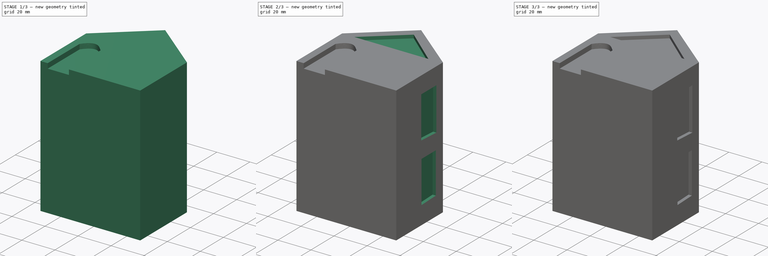
[diagram: build sequence overview — one tinted view per stage of 3, left to right]
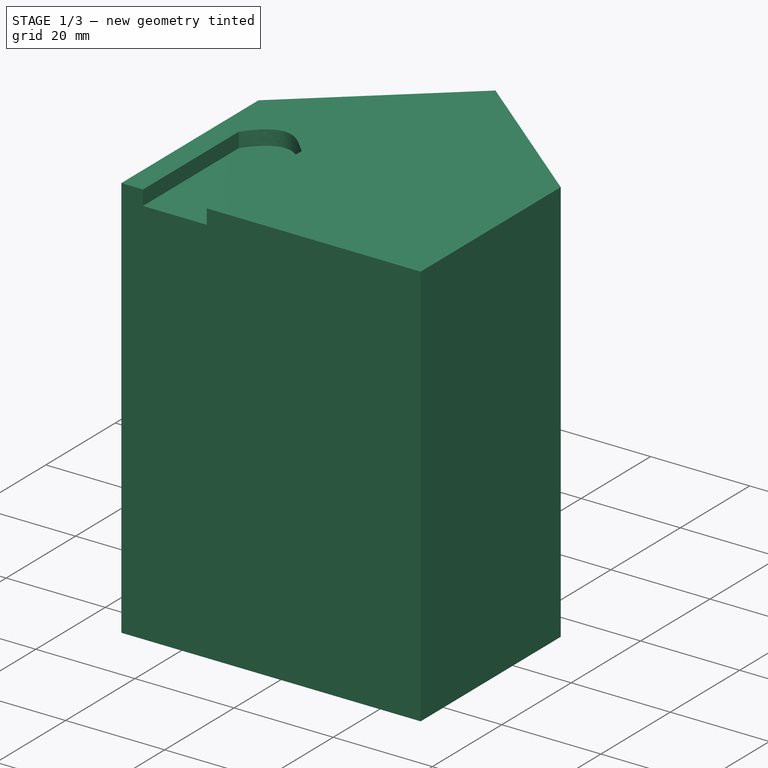
[diagram: stage 1 of 3 — iso view after this stage's code; geometry added in this stage tinted green]
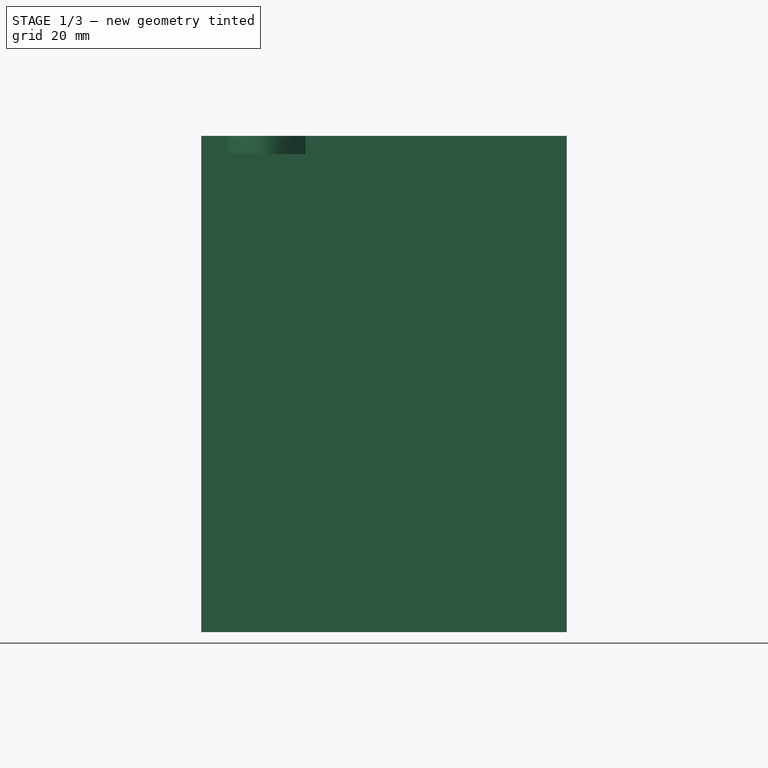
[diagram: stage 1 of 3 — front view after this stage's code; geometry added in this stage tinted green]
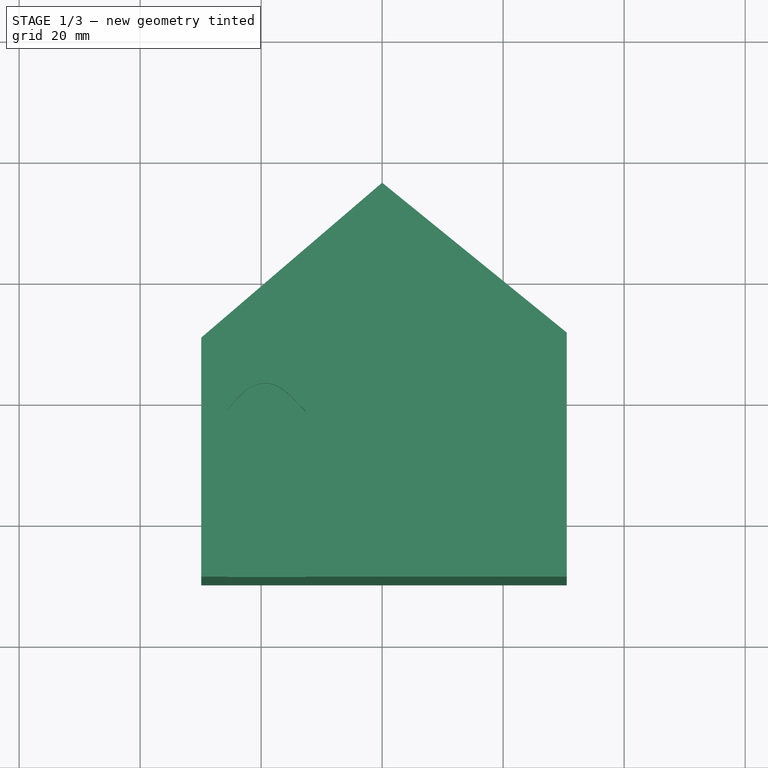
[diagram: stage 1 of 3 — top view after this stage's code; geometry added in this stage tinted green]
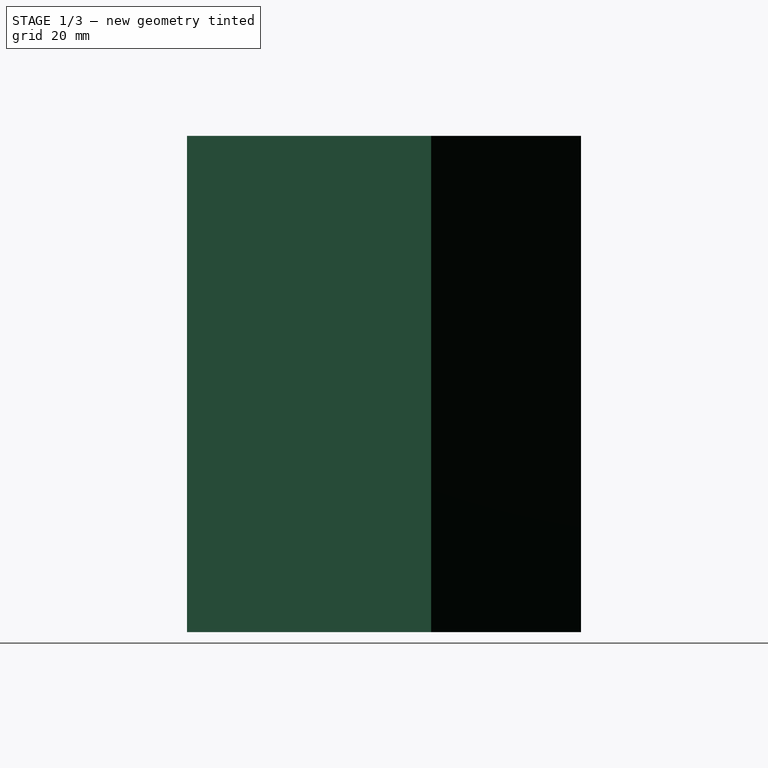
[diagram: stage 1 of 3 — right view after this stage's code; geometry added in this stage tinted green]
FCSTD DOCUMENT  (FreeCAD 1.0R39319 (Git))
Label: ojt1_t17r02_house
License: All rights reserved
LicenseURL: https://en.wikipedia.org/wiki/All_rights_reserved
objects: Sketcher::SketchObject×7, PartDesign::Pocket×5, PartDesign::Pad×1, PartDesign::Body×1
note: 33 computed .brp shape members not serialized (recipe doc carries the construction recipe); baked Part::Feature solids carry a one-line shape summary decoded from their .brp

FEATURE [Sketcher::SketchObject] Sketch
  ArcFitTolerance = 1e-06
  AttachmentSupport = -> [XY_Plane]
  FullyConstrained = false
  MakeInternals = false
  MapMode = 5
  sketch-geometry (5):
    g0: LineSegment StartX=30.5063 StartY=10.1968 StartZ=0 EndX=-29.8903 EndY=10.1968 EndZ=0
    g1: LineSegment StartX=-29.8903 StartY=10.1968 StartZ=0 EndX=-29.8903 EndY=49.719 EndZ=0
    g2: LineSegment StartX=-29.8903 StartY=49.719 StartZ=0 EndX=7.1e-15 EndY=75.3249 EndZ=0
    g3: LineSegment StartX=7.1e-15 StartY=75.3249 StartZ=0 EndX=30.5063 EndY=50.554 EndZ=0
    g4: LineSegment StartX=30.5063 StartY=50.554 StartZ=0 EndX=30.5063 EndY=10.1968 EndZ=0
  constraints (9):
    c: Horizontal(g0)
    c: Coincident(g0,g1)
    c: Vertical(g1)
    c: Coincident(g1,g2)
    c: PointOnObject(g2,g-2)
    c: Coincident(g2,g3)
    c: Coincident(g3,g4)
    c: Coincident(g4,g0)
    c: Vertical(g4)
FEATURE [PartDesign::Pad] Pad
  Direction = (0,0,1)
  Length = 82
  Length2 = 10
  Profile = -> Sketch
  ReferenceAxis = -> Sketch [N_Axis]
  Refine = true
  Suppressed = false
  Type = 0
FEATURE [Sketcher::SketchObject] Sketch001
  ArcFitTolerance = 1e-06
  AttachmentSupport = -> [Pad]
  FullyConstrained = false
  MakeInternals = false
  MapMode = 5
  Placement = pos=(0,0,82) rot=(0,0,1;0rad)
  sketch-geometry (12):
    g0: LineSegment StartX=-25.5156 StartY=10.0585 StartZ=0 EndX=-25.5156 EndY=37.7992 EndZ=0
    g1: LineSegment StartX=-25.5156 StartY=10.0585 StartZ=0 EndX=-12.6602 EndY=10.0585 EndZ=0
    g2: LineSegment StartX=-12.6602 StartY=10.0585 StartZ=0 EndX=-12.6602 EndY=37.5736 EndZ=0
    g3-g7: Circle [constr] x5 (B-spline internal-alignment scaffolding for g8; pole/knot coordinates omitted)
    g8: BSplineCurve PolesCount=5 KnotsCount=3 Degree=3 IsPeriodic=0
    g9: GeomPoint [constr] X=-25.5156 Y=37.7992 Z=0
    g10: GeomPoint [constr] X=-14.54 Y=39.493 Z=0
    g11: GeomPoint [constr] X=-12.6602 Y=37.5736 Z=0
  constraints (15):
    c: Vertical(g0)
    c: Coincident(g1,g0)
    c: Horizontal(g1)
    c: Coincident(g2,g1)
    c: Vertical(g2)
    c: Weight(g3) = 1
    c: Equal(g3, g4-g7) x4
    c: InternalAlignment(g3-g7 -> g8) x5
    c: InternalAlignment(g9,g8)
    c: InternalAlignment(g10,g8)
    c: InternalAlignment(g11,g8)
    c: Coincident(g3,g0)
    c: Coincident(g5,g2)
    c: Coincident(g6,g2)
    c: Coincident(g7,g2)
FEATURE [PartDesign::Pocket] Pocket
  BaseFeature = -> Pad
  Direction = (0,0,-1)
  Length = 3
  Length2 = 5
  Profile = -> Sketch001
  ReferenceAxis = -> Sketch001 [N_Axis]
  Refine = true
  Suppressed = false
  Type = 0
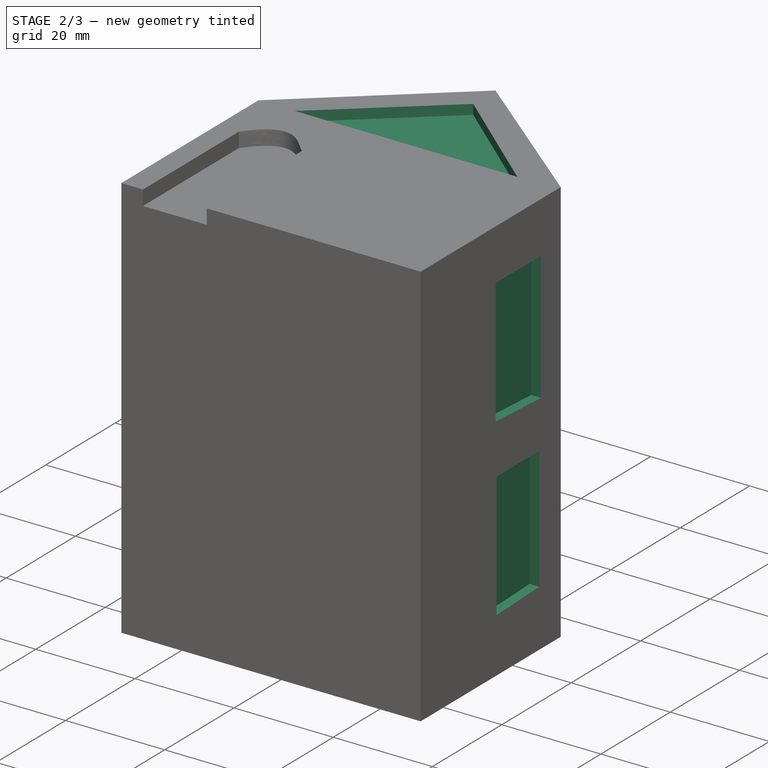
[diagram: stage 2 of 3 — iso view after this stage's code; geometry added in this stage tinted green]
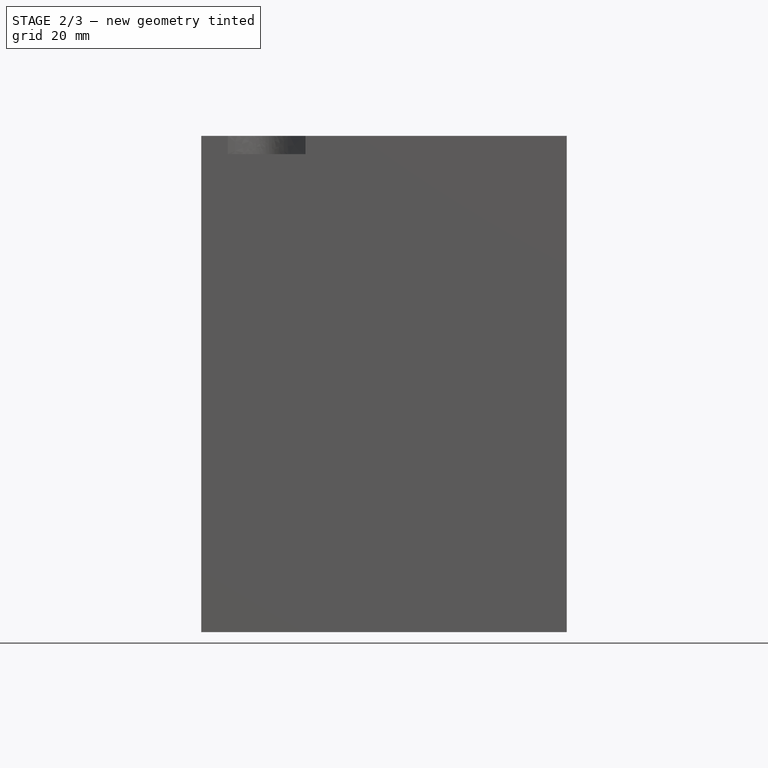
[diagram: stage 2 of 3 — front view after this stage's code; geometry added in this stage tinted green]
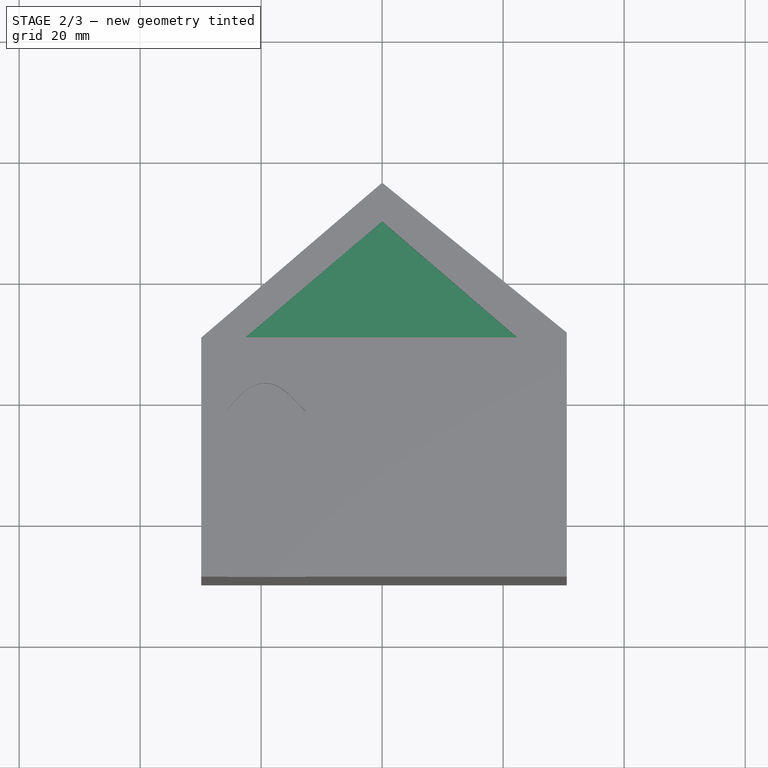
[diagram: stage 2 of 3 — top view after this stage's code; geometry added in this stage tinted green]
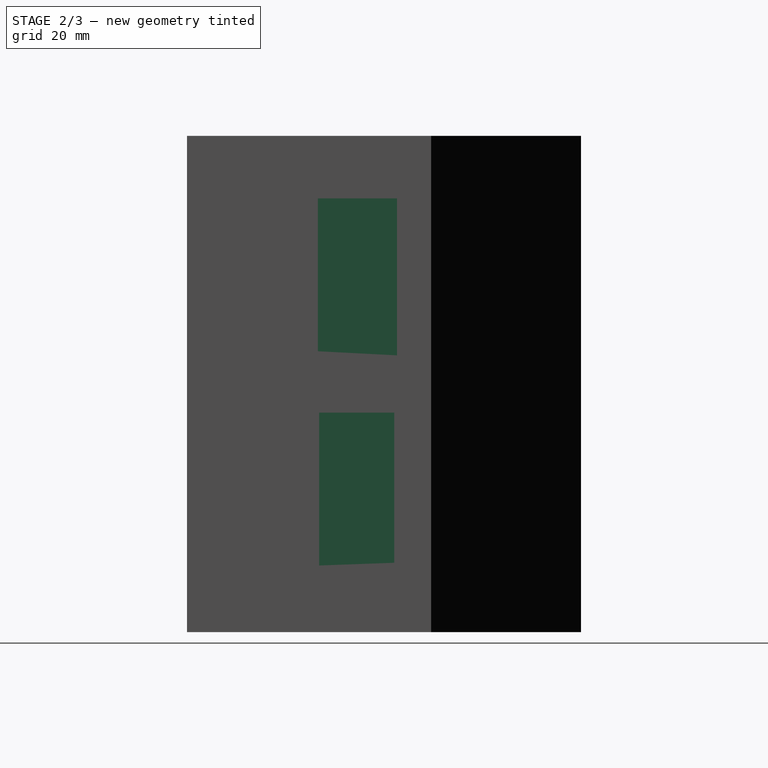
[diagram: stage 2 of 3 — right view after this stage's code; geometry added in this stage tinted green]
FEATURE [Sketcher::SketchObject] Sketch002
  ArcFitTolerance = 1e-06
  AttachmentSupport = -> [Pocket]
  FullyConstrained = false
  MakeInternals = false
  MapMode = 5
  Placement = pos=(0,0,82) rot=(0,0,1;0rad)
  sketch-geometry (3):
    g0: LineSegment StartX=0 StartY=68.9228 StartZ=0 EndX=-22.5837 EndY=49.7524 EndZ=0
    g1: LineSegment StartX=-22.5837 StartY=49.7524 StartZ=0 EndX=22.2975 EndY=49.7524 EndZ=0
    g2: LineSegment StartX=0 StartY=68.9228 StartZ=0 EndX=22.2975 EndY=49.7524 EndZ=0
  constraints (5):
    c: PointOnObject(g0,g-2)
    c: Coincident(g1,g0)
    c: Horizontal(g1)
    c: Coincident(g2,g0)
    c: Coincident(g2,g1)
FEATURE [PartDesign::Pocket] Pocket001
  BaseFeature = -> Pocket
  Direction = (0,0,-1)
  Length = 2
  Length2 = 5
  Profile = -> Sketch002
  ReferenceAxis = -> Sketch002 [N_Axis]
  Refine = true
  Suppressed = false
  Type = 0
FEATURE [Sketcher::SketchObject] Sketch003
  ArcFitTolerance = 1e-06
  AttachmentSupport = -> [Pocket001]
  FullyConstrained = false
  MakeInternals = false
  MapMode = 5
  Placement = pos=(30.5063,0,0) rot=(0.57735,0.57735,0.57735;2.0944rad)
  sketch-geometry (8):
    g0: LineSegment StartX=31.8224 StartY=71.6726 StartZ=0 EndX=31.8224 EndY=46.4129 EndZ=0
    g1: LineSegment StartX=31.8224 StartY=46.4129 StartZ=0 EndX=44.9034 EndY=45.7363 EndZ=0
    g2: LineSegment StartX=44.9034 StartY=45.7363 StartZ=0 EndX=44.9034 EndY=71.6726 EndZ=0
    g3: LineSegment StartX=44.9034 StartY=71.6726 StartZ=0 EndX=31.8224 EndY=71.6726 EndZ=0
    g4: LineSegment StartX=32.0479 StartY=36.2639 StartZ=0 EndX=44.4523 EndY=36.2639 EndZ=0
    g5: LineSegment StartX=44.4523 StartY=36.2639 StartZ=0 EndX=44.4523 EndY=11.4552 EndZ=0
    g6: LineSegment StartX=44.4523 StartY=11.4552 StartZ=0 EndX=32.0479 EndY=11.0041 EndZ=0
    g7: LineSegment StartX=32.0479 StartY=11.0041 StartZ=0 EndX=32.0479 EndY=36.2639 EndZ=0
  constraints (14):
    c: Vertical(g0)
    c: Coincident(g0,g1)
    c: Coincident(g1,g2)
    c: Vertical(g2)
    c: Coincident(g2,g3)
    c: Coincident(g3,g0)
    c: Horizontal(g3)
    c: Horizontal(g4)
    c: Coincident(g4,g5)
    c: Vertical(g5)
    c: Coincident(g5,g6)
    c: Coincident(g6,g7)
    c: Coincident(g7,g4)
    c: Vertical(g7)
FEATURE [PartDesign::Pocket] Pocket002
  BaseFeature = -> Pocket001
  Direction = (-1,0,0)
  Length = 2
  Length2 = 5
  Profile = -> Sketch003
  ReferenceAxis = -> Sketch003 [N_Axis]
  Refine = true
  Suppressed = false
  Type = 0
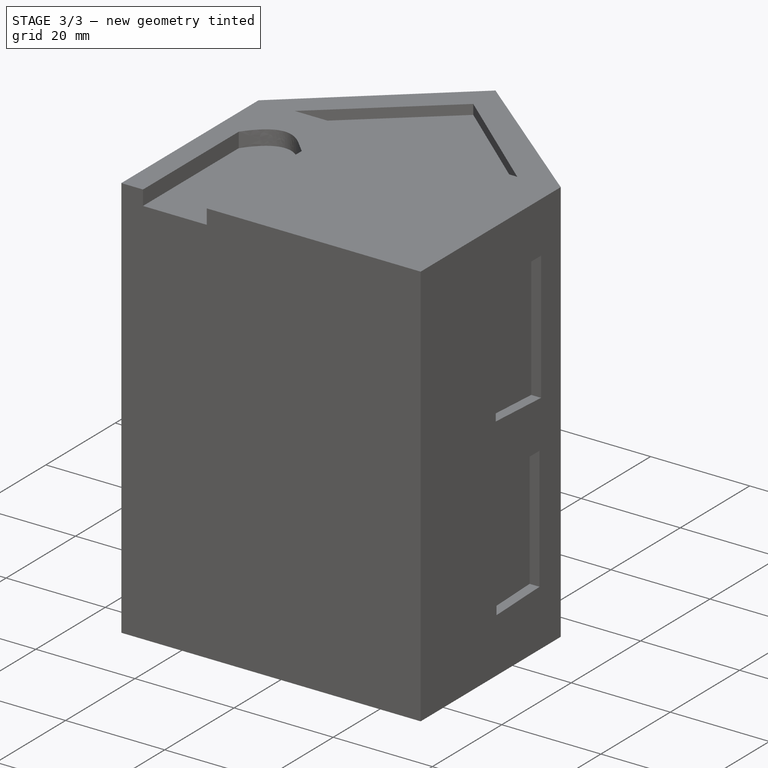
[diagram: stage 3 of 3 — iso view after this stage's code; geometry added in this stage tinted green]
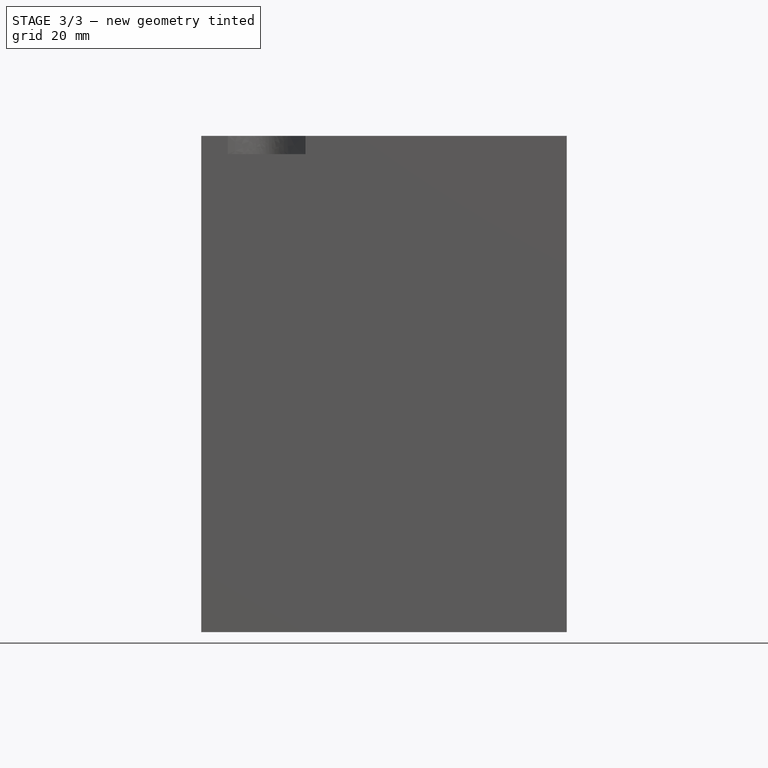
[diagram: stage 3 of 3 — front view after this stage's code; geometry added in this stage tinted green]
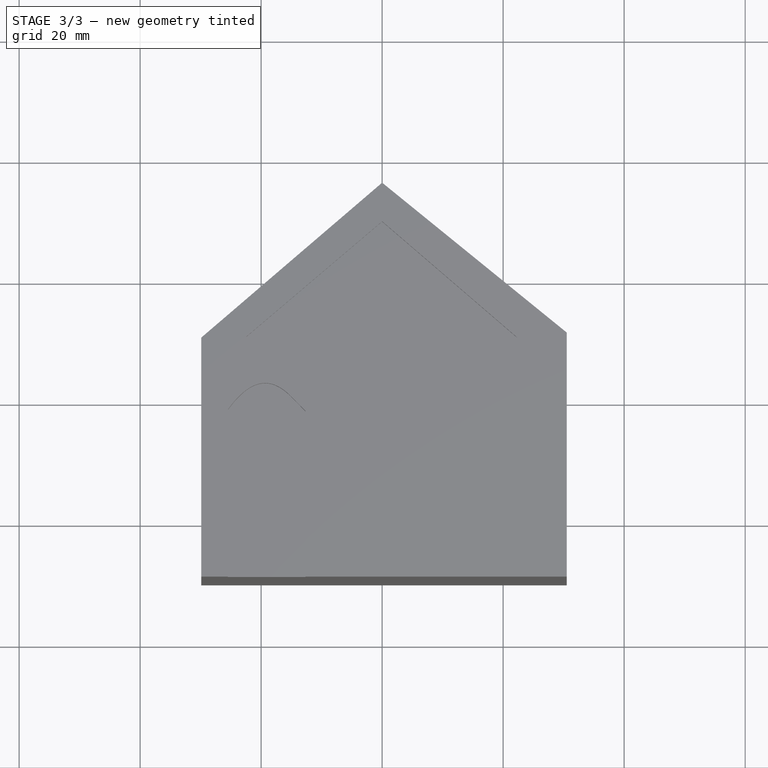
[diagram: stage 3 of 3 — top view after this stage's code; geometry added in this stage tinted green]
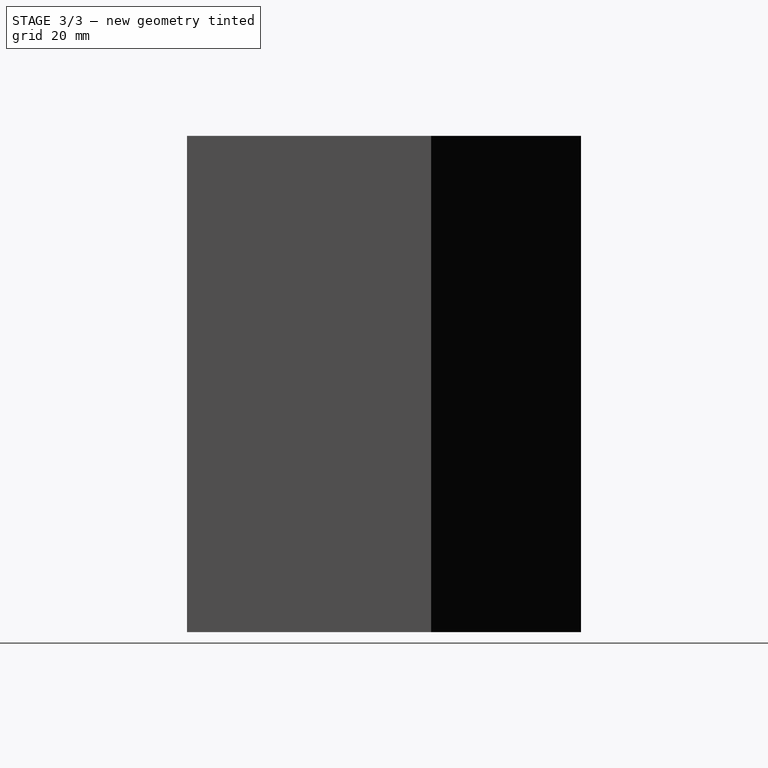
[diagram: stage 3 of 3 — right view after this stage's code; geometry added in this stage tinted green]
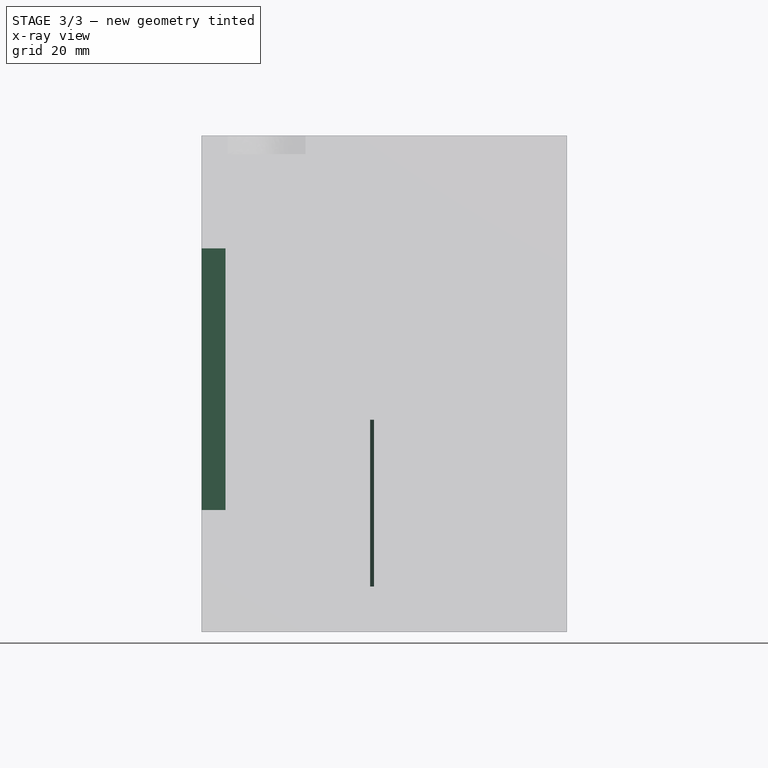
[diagram: stage 3 of 3 — x-ray composite at the front view; earlier geometry ghosted, this stage's added geometry solid]
FEATURE [Sketcher::SketchObject] Sketch004
  ArcFitTolerance = 1e-06
  AttachmentSupport = -> [Pocket002]
  FullyConstrained = true
  MakeInternals = false
  MapMode = 5
  Placement = pos=(-37.2162,43.4432,0) rot=(-0.252961,0.684109,0.684109;3.63712rad)
FEATURE [Sketcher::SketchObject] Sketch007
  ArcFitTolerance = 1e-06
  AttachmentSupport = -> [Pocket002]
  FullyConstrained = false
  MakeInternals = false
  MapMode = 5
  Placement = pos=(-37.2162,43.4432,0) rot=(-0.252961,0.684109,0.684109;3.63712rad)
  sketch-geometry (4):
    g0: LineSegment StartX=-46.3818 StartY=35.0918 StartZ=0 EndX=-46.3818 EndY=7.47365 EndZ=0
    g1: LineSegment StartX=-46.3818 StartY=7.47365 StartZ=0 EndX=-28.4979 EndY=7.47365 EndZ=0
    g2: LineSegment StartX=-28.4979 StartY=7.47365 StartZ=0 EndX=-28.4979 EndY=35.0918 EndZ=0
    g3: LineSegment StartX=-28.4979 StartY=35.0918 StartZ=0 EndX=-46.3818 EndY=35.0918 EndZ=0
  constraints (8):
    c: Coincident(g0,g1)
    c: Coincident(g1,g2)
    c: Coincident(g2,g3)
    c: Coincident(g3,g0)
    c: Vertical(g0)
    c: Vertical(g2)
    c: Horizontal(g1)
    c: Horizontal(g3)
FEATURE [PartDesign::Pocket] Pocket003
  BaseFeature = -> Pocket002
  Direction = (0.650582,-0.759436,0)
  Length = 1
  Length2 = 5
  Profile = -> Sketch007
  ReferenceAxis = -> Sketch007 [N_Axis]
  Refine = true
  Suppressed = false
  Type = 0
FEATURE [Sketcher::SketchObject] Sketch009
  ArcFitTolerance = 1e-06
  AttachmentSupport = -> [Pocket003]
  FullyConstrained = false
  MakeInternals = false
  MapMode = 5
  Placement = pos=(-29.8903,0,0) rot=(0.57735,-0.57735,-0.57735;2.0944rad)
  sketch-geometry (4):
    g0: LineSegment StartX=-47.1758 StartY=63.4119 StartZ=0 EndX=-47.1758 EndY=20.1736 EndZ=0
    g1: LineSegment StartX=-47.1758 StartY=20.1736 StartZ=0 EndX=-27.2545 EndY=20.1736 EndZ=0
    g2: LineSegment StartX=-27.2545 StartY=20.1736 StartZ=0 EndX=-27.2545 EndY=63.4119 EndZ=0
    g3: LineSegment StartX=-27.2545 StartY=63.4119 StartZ=0 EndX=-47.1758 EndY=63.4119 EndZ=0
  constraints (8):
    c: Coincident(g0,g1)
    c: Coincident(g1,g2)
    c: Coincident(g2,g3)
    c: Coincident(g3,g0)
    c: Vertical(g0)
    c: Vertical(g2)
    c: Horizontal(g1)
    c: Horizontal(g3)
FEATURE [PartDesign::Pocket] Pocket004
  BaseFeature = -> Pocket003
  Direction = (1,0,0)
  Length = 4
  Length2 = 5
  Profile = -> Sketch009
  ReferenceAxis = -> Sketch009 [N_Axis]
  Refine = true
  Suppressed = false
  Type = 0
FEATURE [PartDesign::Body] Body
  AllowCompound = false
  Group = -> [Sketch,Pad,Sketch001,Pocket,Sketch002,Pocket001,Sketch003,Pocket002,Sketch004,Sketch007,Pocket003,Sketch009,Pocket004]
  Origin = -> Origin
  Placement = pos=(0,0,0) rot=(1,0,0;1.5708rad)
  Tip = -> Pocket004
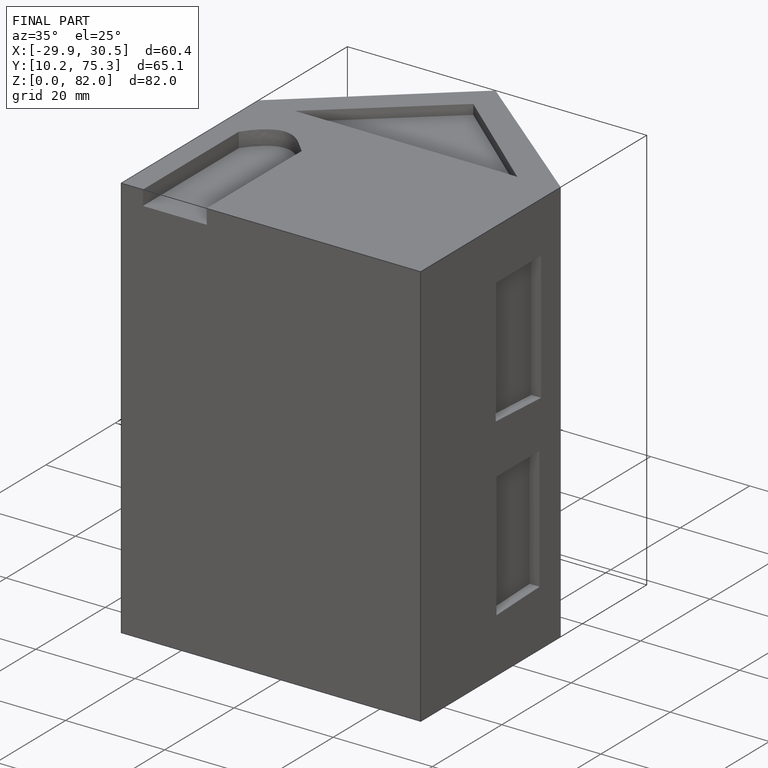
[diagram: finished part — iso view with bounding-box wireframe]
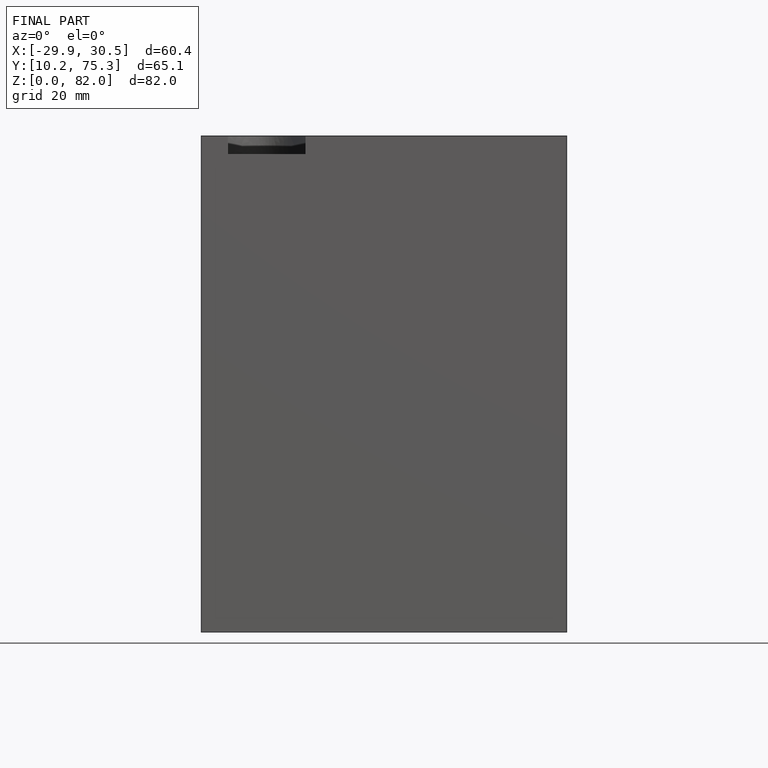
[diagram: finished part — front view with bounding-box wireframe]
